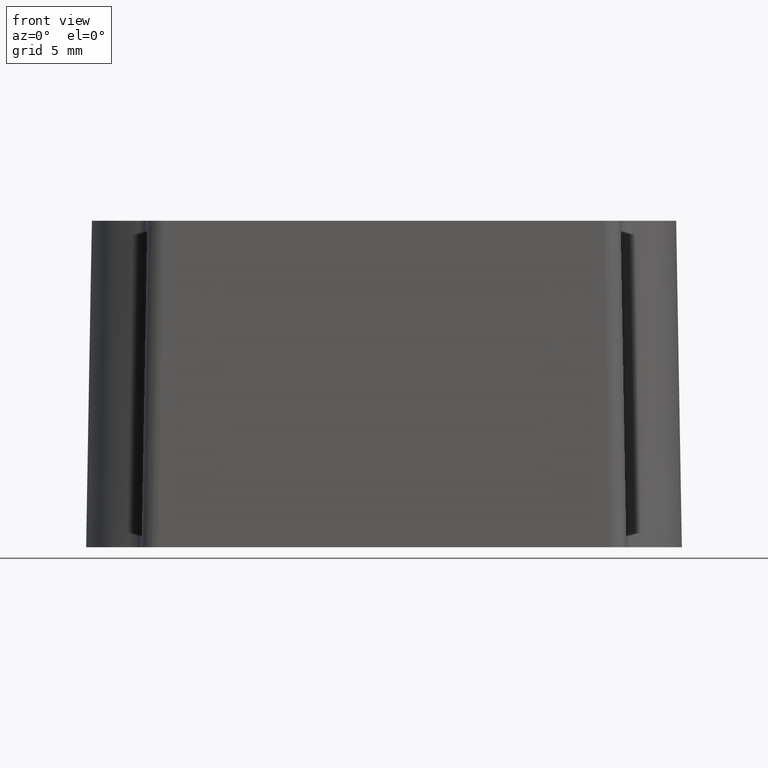
[diagram: clean part render]
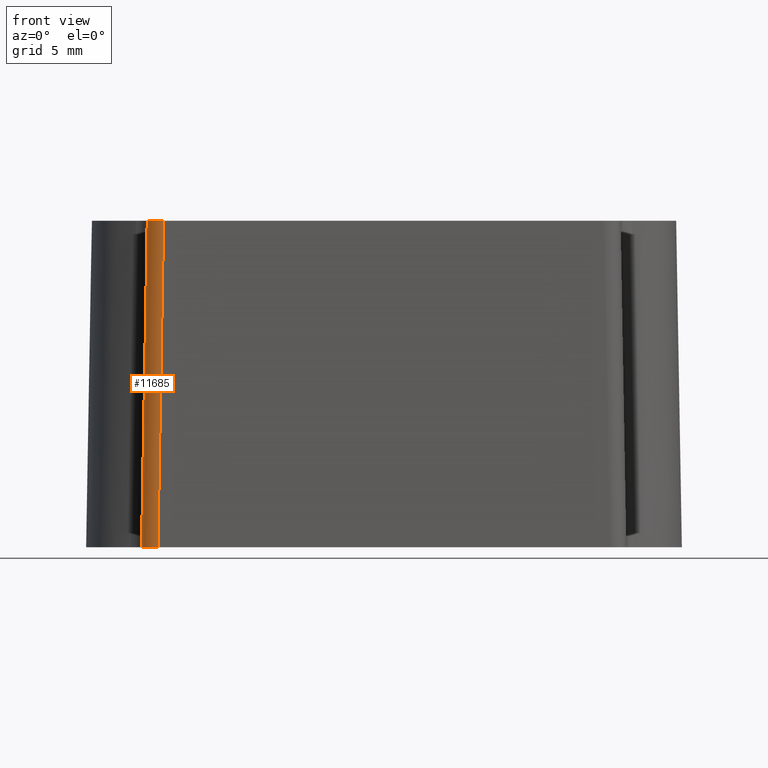
[diagram: same view with one face highlighted and labeled with its STEP entity id]
A machine part, front view. The second image highlights one B-rep face of the part: STEP entity #11685.
In plain terms, the highlighted cylindrical surface (edge-blend (fillet) strip) has radius 1 mm, axis along (0.0174, 0.0174, 0.9997).
Its self-contained STEP definition (entity closure, byte-faithful):
#4056 = EDGE_CURVE ( 'NONE', #6327, #6348, #7101, .T. ) ;
#6327 = VERTEX_POINT ( 'NONE', #22041 ) ;
#6348 = VERTEX_POINT ( 'NONE', #22247 ) ;
#6775 = VERTEX_POINT ( 'NONE', #22348 ) ;
#6820 = EDGE_LOOP ( 'NONE', ( #26217, #26226, #25235, #26214 ) ) ;
#6933 = VERTEX_POINT ( 'NONE', #21740 ) ;
#7089 = DIRECTION ( 'NONE',  ( -0.01744974916068272100, -0.01744974916068272500, -0.9996954598818874600 ) ) ;
#7101 = LINE ( 'NONE', #7196, #33945 ) ;
#7196 = CARTESIAN_POINT ( 'NONE',  ( -13.50045675221350500, 20.50059425406575300, 19.98255822185993600 ) ) ;
#9595 = CARTESIAN_POINT ( 'NONE',  ( -13.49777748089969100, 21.50312122053595600, 20.11860116618957100 ) ) ;
#9597 = DIRECTION ( 'NONE',  ( 0.01744974916068272100, 0.01744974916068272800, 0.9996954598818875700 ) ) ;
#9600 = CYLINDRICAL_SURFACE ( 'NONE', #18931, 1.000000000000001100 ) ;
#9601 = FACE_OUTER_BOUND ( 'NONE', #6820, .T. ) ;
#9603 = DIRECTION ( 'NONE',  ( 0.0000000000000000000, -0.9998476951563912700, 0.01745240643728424700 ) ) ;
#11198 = CARTESIAN_POINT ( 'NONE',  ( -14.49999999999999800, 21.50074639659203900, 20.00000000000000000 ) ) ;
#11221 = CARTESIAN_POINT ( 'NONE',  ( -14.49999999999999500, 20.91501223627553000, 20.00000000000000000 ) ) ;
#11222 = CARTESIAN_POINT ( 'NONE',  ( -14.08588646516011500, 20.50089870143565200, 20.00000000000000000 ) ) ;
#11223 = CARTESIAN_POINT ( 'NONE',  ( -13.50015230484360800, 20.50089870143564900, 20.00000000000000000 ) ) ;
#11264 = CARTESIAN_POINT ( 'NONE',  ( -13.84925360340796100, 20.15179740287129900, 0.0000000000000000000 ) ) ;
#11269 = CARTESIAN_POINT ( 'NONE',  ( -14.43498776372446800, 20.15179740287129600, 0.0000000000000000000 ) ) ;
#11270 = CARTESIAN_POINT ( 'NONE',  ( -14.84910129856435300, 20.56591093771118000, 0.0000000000000000000 ) ) ;
#11271 = CARTESIAN_POINT ( 'NONE',  ( -14.84910129856435300, 21.15164509802768600, 0.0000000000000000000 ) ) ;
#11685 = ADVANCED_FACE ( 'NONE', ( #9601 ), #9600, .T. ) ;
#12768 = VECTOR ( 'NONE', #31847, 1000.000000000000200 ) ;
#15178 = EDGE_CURVE ( 'NONE', #6933, #6327, #17006, .T. ) ;
#15213 = EDGE_CURVE ( 'NONE', #6348, #6775, #17003, .T. ) ;
#17003 =( BOUNDED_CURVE ( )  B_SPLINE_CURVE ( 3, ( #11264, #11269, #11270, #11271 ),
 .UNSPECIFIED., .F., .T. ) 
 B_SPLINE_CURVE_WITH_KNOTS ( ( 4, 4 ),
 ( 2.356346783439925700, 3.926838523739660600 ),
 .UNSPECIFIED. ) 
 CURVE ( )  GEOMETRIC_REPRESENTATION_ITEM ( )  RATIONAL_B_SPLINE_CURVE ( ( 1.000000000000000000, 0.8048096403827855700, 0.8048096403827855700, 1.000000000000000000 ) ) 
 REPRESENTATION_ITEM ( '' )  );
#17006 =( BOUNDED_CURVE ( )  B_SPLINE_CURVE ( 3, ( #11198, #11221, #11222, #11223 ),
 .UNSPECIFIED., .F., .T. ) 
 B_SPLINE_CURVE_WITH_KNOTS ( ( 4, 4 ),
 ( 2.356346783439928800, 3.926838523739660600 ),
 .UNSPECIFIED. ) 
 CURVE ( )  GEOMETRIC_REPRESENTATION_ITEM ( )  RATIONAL_B_SPLINE_CURVE ( ( 1.000000000000000000, 0.8048096403827862400, 0.8048096403827862400, 1.000000000000000000 ) ) 
 REPRESENTATION_ITEM ( '' )  );
#18931 = AXIS2_PLACEMENT_3D ( 'NONE', #9595, #9597, #9603 ) ;
#20180 = EDGE_CURVE ( 'NONE', #6775, #6933, #31845, .T. ) ;
#21740 = CARTESIAN_POINT ( 'NONE',  ( -14.49999999999999800, 21.50074639659203900, 20.00000000000000000 ) ) ;
#22041 = CARTESIAN_POINT ( 'NONE',  ( -13.50015230484360800, 20.50089870143564900, 20.00000000000000000 ) ) ;
#22247 = CARTESIAN_POINT ( 'NONE',  ( -13.84925360340796100, 20.15179740287129900, 0.0000000000000000000 ) ) ;
#22348 = CARTESIAN_POINT ( 'NONE',  ( -14.84910129856435300, 21.15164509802768600, 0.0000000000000000000 ) ) ;
#25235 = ORIENTED_EDGE ( 'NONE', *, *, #15178, .F. ) ;
#26214 = ORIENTED_EDGE ( 'NONE', *, *, #20180, .F. ) ;
#26217 = ORIENTED_EDGE ( 'NONE', *, *, #15213, .F. ) ;
#26226 = ORIENTED_EDGE ( 'NONE', *, *, #4056, .F. ) ;
#31845 = LINE ( 'NONE', #31846, #12768 ) ;
#31846 = CARTESIAN_POINT ( 'NONE',  ( -14.49762517605608100, 21.50312122053595600, 20.13605357262685300 ) ) ;
#31847 = DIRECTION ( 'NONE',  ( 0.01744974916068271800, 0.01744974916068272800, 0.9996954598818874600 ) ) ;
#33945 = VECTOR ( 'NONE', #7089, 1000.000000000000000 ) ;